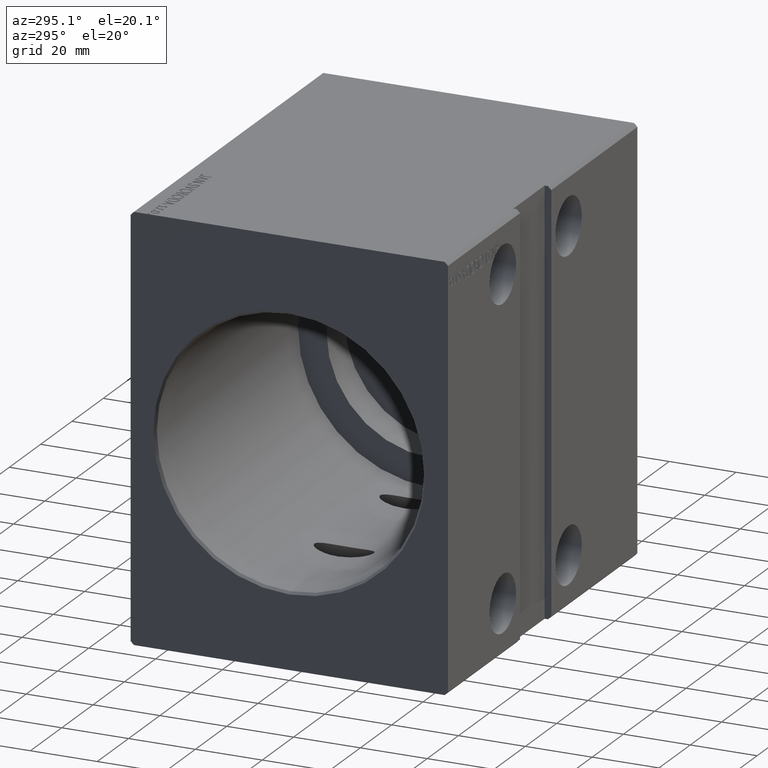
[diagram: clean part render]
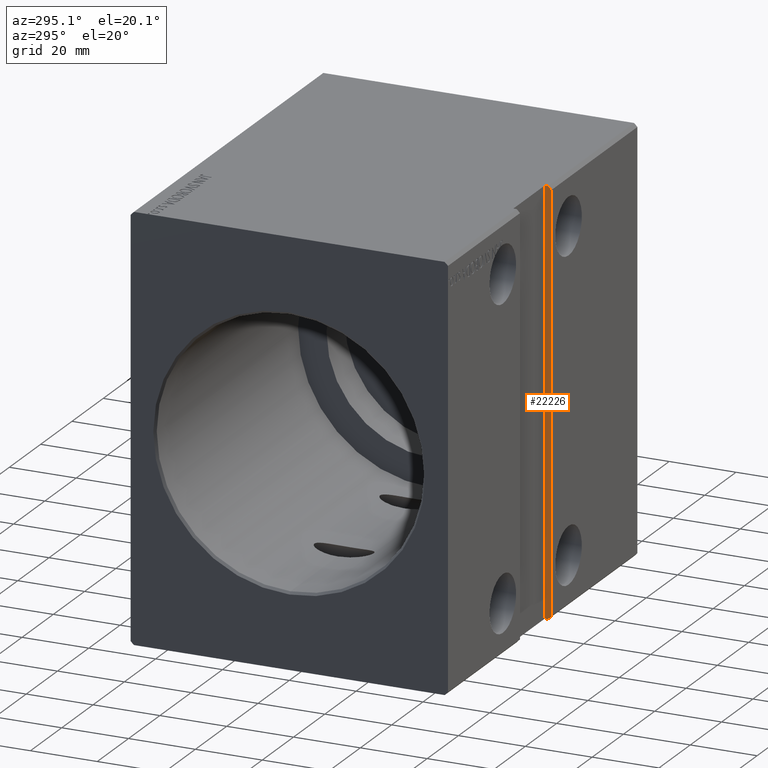
[diagram: same view with one face highlighted and labeled with its STEP entity id]
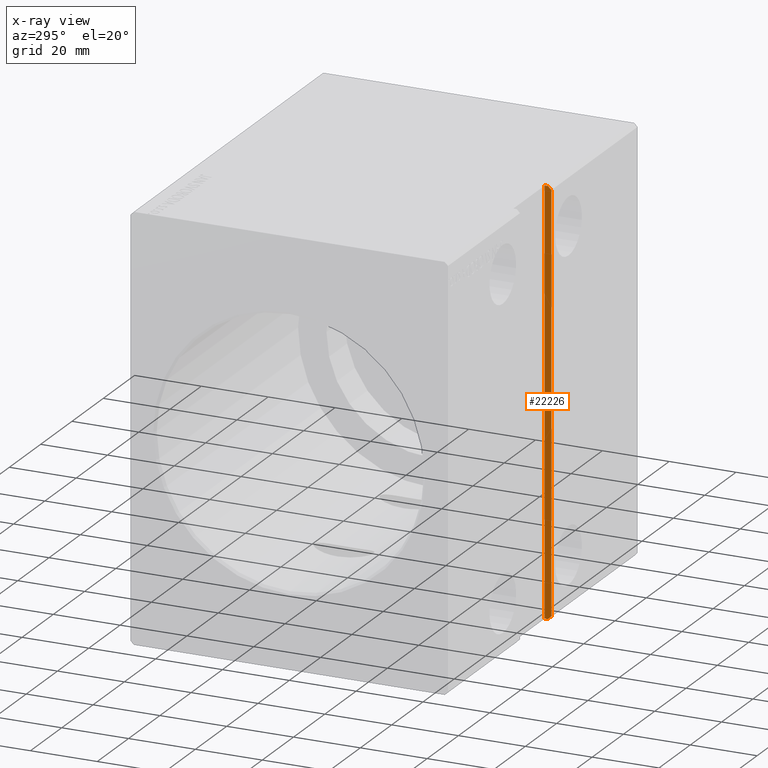
[diagram: x-ray of the same camera — body ghosted, the highlighted face saturated]
A machine part, auxiliary view. The second image highlights one B-rep face of the part: STEP entity #22226.
The next image is the same camera in x-ray: the body ghosted, the highlighted face saturated — about 0% of this face is hidden behind the body in this view.
In plain terms, the highlighted planar face has unit normal (1, -0, 0).
Its self-contained STEP definition (entity closure, byte-faithful):
#74 = DIRECTION ( 'NONE',  ( 1.110223024625156540E-16, 0.000000000000000000, -1.000000000000000000 ) ) ;
#484 = CARTESIAN_POINT ( 'NONE',  ( 66.00000000000001421, -45.50000000000000711, -62.50000000000002842 ) ) ;
#837 = CARTESIAN_POINT ( 'NONE',  ( 66.00000000000000000, -45.50000000000000711, 62.49999999999997868 ) ) ;
#1026 = DIRECTION ( 'NONE',  ( -1.110223024625156540E-16, -0.000000000000000000, 1.000000000000000000 ) ) ;
#1190 = VERTEX_POINT ( 'NONE', #484 ) ;
#2018 = VECTOR ( 'NONE', #19879, 1000.000000000000000 ) ;
#2551 = DIRECTION ( 'NONE',  ( 7.850462293418874601E-17, -0.7071067811865474617, -0.7071067811865474617 ) ) ;
#2849 = CARTESIAN_POINT ( 'NONE',  ( 66.00000000000000000, -45.50000000000000711, 62.49999999999997868 ) ) ;
#2924 = VERTEX_POINT ( 'NONE', #6070 ) ;
#3964 = VECTOR ( 'NONE', #1026, 1000.000000000000000 ) ;
#5416 = VERTEX_POINT ( 'NONE', #23059 ) ;
#5460 = VECTOR ( 'NONE', #29239, 1000.000000000000000 ) ;
#6070 = CARTESIAN_POINT ( 'NONE',  ( 66.00000000000001421, -47.50000000000000711, -61.50000000000002132 ) ) ;
#7202 = EDGE_LOOP ( 'NONE', ( #22040, #24055, #30136, #16298, #20290, #15560 ) ) ;
#7513 = VERTEX_POINT ( 'NONE', #40902 ) ;
#8076 = CARTESIAN_POINT ( 'NONE',  ( 66.00000000000001421, -46.49999999999998579, -62.50000000000002842 ) ) ;
#11024 = EDGE_CURVE ( 'NONE', #1190, #5416, #26659, .T. ) ;
#11547 = VECTOR ( 'NONE', #16863, 1000.000000000000114 ) ;
#11854 = LINE ( 'NONE', #40871, #14937 ) ;
#12569 = LINE ( 'NONE', #12993, #22346 ) ;
#12993 = CARTESIAN_POINT ( 'NONE',  ( 66.00000000000000000, -47.50000000000000711, 62.49999999999997868 ) ) ;
#13330 = LINE ( 'NONE', #837, #2018 ) ;
#14234 = AXIS2_PLACEMENT_3D ( 'NONE', #2849, #41583, #74 ) ;
#14937 = VECTOR ( 'NONE', #2551, 1000.000000000000114 ) ;
#15396 = EDGE_CURVE ( 'NONE', #5416, #34029, #13330, .T. ) ;
#15560 = ORIENTED_EDGE ( 'NONE', *, *, #19488, .F. ) ;
#16298 = ORIENTED_EDGE ( 'NONE', *, *, #20540, .F. ) ;
#16863 = DIRECTION ( 'NONE',  ( 7.850462293418902951E-17, 0.7071067811865451302, -0.7071067811865500152 ) ) ;
#17143 = LINE ( 'NONE', #30071, #5460 ) ;
#19125 = FACE_OUTER_BOUND ( 'NONE', #7202, .T. ) ;
#19488 = EDGE_CURVE ( 'NONE', #34029, #7513, #11854, .T. ) ;
#19879 = DIRECTION ( 'NONE',  ( -0.000000000000000000, -1.000000000000000000, -5.507058653894625237E-17 ) ) ;
#20290 = ORIENTED_EDGE ( 'NONE', *, *, #23178, .T. ) ;
#20540 = EDGE_CURVE ( 'NONE', #2924, #31140, #38886, .T. ) ;
#22040 = ORIENTED_EDGE ( 'NONE', *, *, #15396, .F. ) ;
#22226 = ADVANCED_FACE ( 'NONE', ( #19125 ), #28454, .F. ) ;
#22346 = VECTOR ( 'NONE', #41592, 1000.000000000000000 ) ;
#22608 = EDGE_CURVE ( 'NONE', #1190, #31140, #17143, .T. ) ;
#23059 = CARTESIAN_POINT ( 'NONE',  ( 66.00000000000000000, -45.50000000000000711, 62.49999999999997868 ) ) ;
#23178 = EDGE_CURVE ( 'NONE', #2924, #7513, #12569, .T. ) ;
#24055 = ORIENTED_EDGE ( 'NONE', *, *, #11024, .F. ) ;
#26659 = LINE ( 'NONE', #30042, #3964 ) ;
#28454 = PLANE ( 'NONE',  #14234 ) ;
#29239 = DIRECTION ( 'NONE',  ( -0.000000000000000000, -1.000000000000000000, -5.507058653894625237E-17 ) ) ;
#29364 = CARTESIAN_POINT ( 'NONE',  ( 66.00000000000001421, -47.49999999999999289, -61.50000000000001421 ) ) ;
#30042 = CARTESIAN_POINT ( 'NONE',  ( 66.00000000000000000, -45.50000000000000711, 62.49999999999997868 ) ) ;
#30071 = CARTESIAN_POINT ( 'NONE',  ( 66.00000000000001421, -45.50000000000000711, -62.50000000000002842 ) ) ;
#30136 = ORIENTED_EDGE ( 'NONE', *, *, #22608, .T. ) ;
#31140 = VERTEX_POINT ( 'NONE', #8076 ) ;
#34029 = VERTEX_POINT ( 'NONE', #35656 ) ;
#35656 = CARTESIAN_POINT ( 'NONE',  ( 66.00000000000000000, -46.50000000000001421, 62.49999999999997868 ) ) ;
#38886 = LINE ( 'NONE', #29364, #11547 ) ;
#40871 = CARTESIAN_POINT ( 'NONE',  ( 66.00000000000000000, -46.50000000000001421, 62.49999999999997868 ) ) ;
#40902 = CARTESIAN_POINT ( 'NONE',  ( 66.00000000000000000, -47.50000000000000711, 61.49999999999998579 ) ) ;
#41583 = DIRECTION ( 'NONE',  ( 1.000000000000000000, -6.114063315515033944E-33, 1.110223024625156540E-16 ) ) ;
#41592 = DIRECTION ( 'NONE',  ( -1.110223024625156540E-16, -0.000000000000000000, 1.000000000000000000 ) ) ;